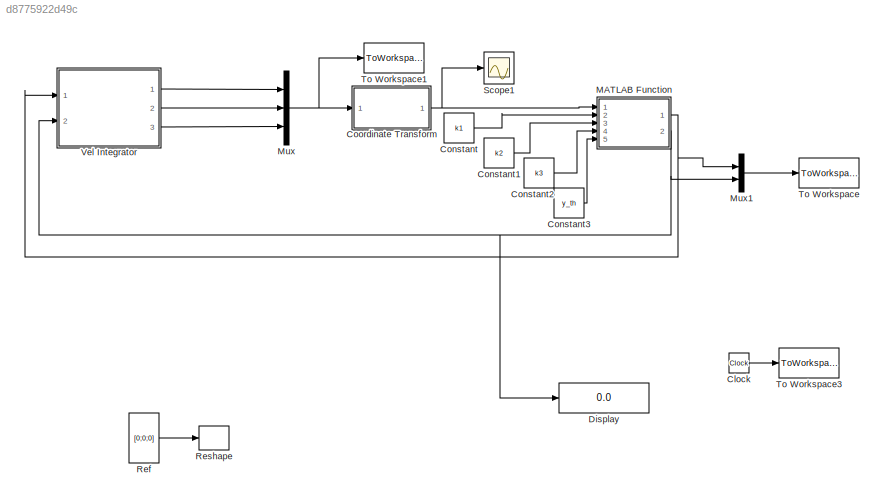
MODEL slx_d8775922d49c
KIND model
CONFIG AbsTol = auto
CONFIG EnableMultiTasking = off
CONFIG FixedStep = ST
CONFIG MaxStep = auto
CONFIG MinStep = auto
CONFIG RelTol = 1e-3
CONFIG SampleTimeConstraint = Unconstrained
CONFIG Solver = FixedStepAuto
CONFIG SolverName = FixedStepAuto
CONFIG StartTime = 0.0
CONFIG StopTime = 15
BLOCK [Clock] Clock
BLOCK [Constant] Constant
  Value = k1
BLOCK [Constant] Constant1
  Value = k2
BLOCK [Constant] Constant2
  Value = k3
BLOCK [Constant] Constant3
  Value = y_th
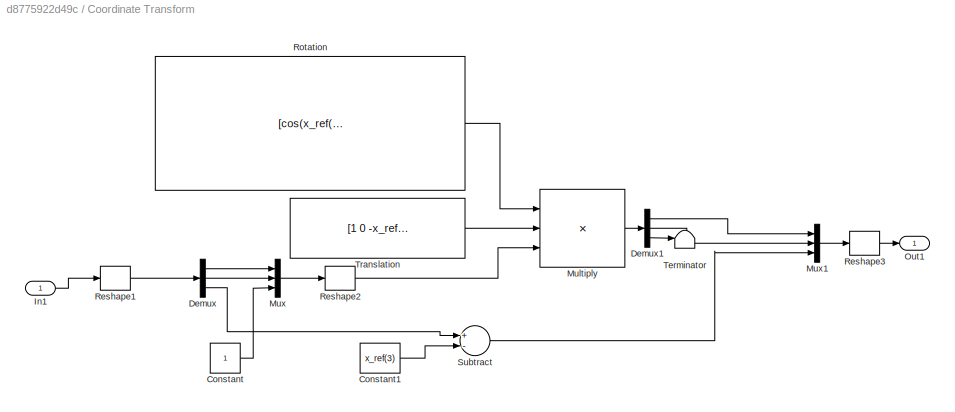
BLOCK [SubSystem] Coordinate Transform
  Ports = [1, 1]
  RequestExecContextInheritance = off
BLOCK [Constant] Coordinate Transform/Constant
BLOCK [Constant] Coordinate Transform/Constant1
  Value = x_ref(3)
BLOCK [Demux] Coordinate Transform/Demux
  DisplayOption = bar
  Outputs = 3
  Ports = [1, 3]
BLOCK [Demux] Coordinate Transform/Demux1
  DisplayOption = bar
  Outputs = 3
  Ports = [1, 3]
BLOCK [Inport] Coordinate Transform/In1
  IconDisplay = Port number
BLOCK [Product] Coordinate Transform/Multiply
  InputSameDT = off
  Inputs = 3
  Multiplication = Matrix(*)
  OutDataTypeStr = Inherit: Inherit via internal rule
  Ports = [3, 1]
  RndMeth = Floor
  SaturateOnIntegerOverflow = off
BLOCK [Mux] Coordinate Transform/Mux
  DisplayOption = bar
  Inputs = 3
  Ports = [3, 1]
BLOCK [Mux] Coordinate Transform/Mux1
  DisplayOption = bar
  Inputs = 3
  Ports = [3, 1]
BLOCK [Outport] Coordinate Transform/Out1
  IconDisplay = Port number
BLOCK [Reshape] Coordinate Transform/Reshape1
  OutputDimensionality = Column vector (2-D)
  Ports = [1, 1]
BLOCK [Reshape] Coordinate Transform/Reshape2
  OutputDimensionality = Column vector (2-D)
  Ports = [1, 1]
BLOCK [Reshape] Coordinate Transform/Reshape3
  OutputDimensionality = Column vector (2-D)
  Ports = [1, 1]
BLOCK [Constant] Coordinate Transform/Rotation
  Value = [cos(x_ref(3)) sin(x_ref(3)) 0;-sin(x_ref(3)) cos(x_ref(3)) 0; 0 0 1]
  VectorParams1D = off
BLOCK [Sum] Coordinate Transform/Subtract
  InputSameDT = off
  Inputs = +-
  OutDataTypeStr = Inherit: Inherit via internal rule
  Ports = [2, 1]
  SaturateOnIntegerOverflow = off
BLOCK [Terminator] Coordinate Transform/Terminator
BLOCK [Constant] Coordinate Transform/Translation
  Value = [1 0 -x_ref(1);0 1 -x_ref(2); 0 0 1]
  VectorParams1D = off
BLOCK [Display] Display
  Decimation = 1
  Ports = [1]
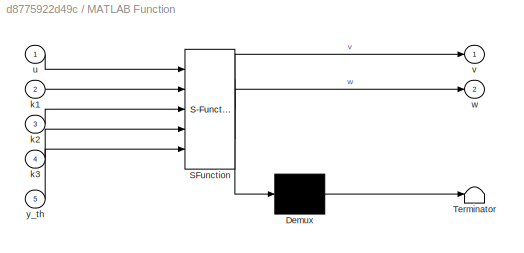
BLOCK [SubSystem] MATLAB Function
  ErrorFcn = Stateflow.Translate.translate
  PermitHierarchicalResolution = ExplicitOnly
  Ports = [5, 2]
  RequestExecContextInheritance = off
  SFBlockType = MATLAB Function
  TreatAsAtomicUnit = on
BLOCK [Demux] MATLAB Function/ Demux 
  Outputs = 1
  Ports = [1, 1]
BLOCK [S-Function] MATLAB Function/ SFunction 
  EnableBusSupport = on
  FunctionName = sf_sfun
  PortCounts = [5 3]
  Ports = [5, 3]
  SFcnIsStateOwnerBlock = off
  SFunctionDeploymentMode = off
  Tag = Stateflow S-Function vs_paper2002 2
BLOCK [Terminator] MATLAB Function/ Terminator 
BLOCK [Inport] MATLAB Function/k1
  IconDisplay = Port number
  Port = 2
BLOCK [Inport] MATLAB Function/k2
  IconDisplay = Port number
  Port = 3
BLOCK [Inport] MATLAB Function/k3
  IconDisplay = Port number
  Port = 4
BLOCK [Inport] MATLAB Function/u
  IconDisplay = Port number
BLOCK [Outport] MATLAB Function/v
  IconDisplay = Port number
BLOCK [Outport] MATLAB Function/w
  IconDisplay = Port number
  Port = 2
BLOCK [Inport] MATLAB Function/y_th
  IconDisplay = Port number
  Port = 5
BLOCK [Mux] Mux
  DisplayOption = bar
  Inputs = 3
  Ports = [3, 1]
BLOCK [Mux] Mux1
  DisplayOption = bar
  Inputs = 2
  Ports = [2, 1]
BLOCK [Constant] Ref
  Commented = on
  Value = [0;0;0]
  VectorParams1D = off
BLOCK [Reshape] Reshape
  Commented = on
  OutputDimensionality = Column vector (2-D)
  Ports = [1, 1]
BLOCK [Scope] Scope1
  Floating = off
  NumInputPorts = 1
  Ports = [1]
  ScopeSpecificationString = Simulink.scopes.TimeScopeBlockCfg('CurrentConfiguration', extmgr.ConfigurationSet(extmgr.Configuration('Core','General UI',true),extmgr.Configuration('Core','Source UI',true),extmgr.Configuration('Sources','WiredSimulink',true,'DataLoggingVariableName','ScopeData1'),extmgr.Configuration('Visuals','Time Domain',true,'SerializedDisplays',{struct('MinYLimReal','-5.16242','MaxYLimReal','1.68471','YLab...<+1463ch>
BLOCK [ToWorkspace] To Workspace
  FixptAsFi = on
  MaxDataPoints = inf
  Ports = [1]
  SampleTime = -1
  Save2DSignal = 3-D array (concatenate along third dimension)
  SaveFormat = Timeseries
  VariableName = vw
BLOCK [ToWorkspace] To Workspace1
  FixptAsFi = on
  MaxDataPoints = inf
  Ports = [1]
  SampleTime = -1
  Save2DSignal = 3-D array (concatenate along third dimension)
  SaveFormat = Timeseries
  VariableName = xc
BLOCK [ToWorkspace] To Workspace3
  FixptAsFi = on
  MaxDataPoints = inf
  Ports = [1]
  SampleTime = -1
  Save2DSignal = 3-D array (concatenate along third dimension)
  SaveFormat = Timeseries
  VariableName = time
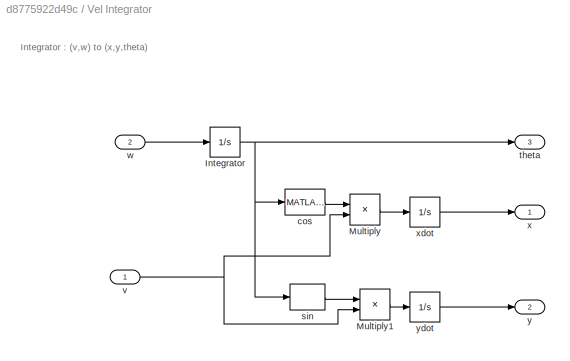
BLOCK [SubSystem] Vel Integrator
  Ports = [2, 3]
  RequestExecContextInheritance = off
BLOCK [Integrator] Vel Integrator/Integrator
  InitialCondition = theta_0
  Ports = [1, 1]
BLOCK [Product] Vel Integrator/Multiply
  InputSameDT = off
  OutDataTypeStr = Inherit: Inherit via internal rule
  Ports = [2, 1]
  RndMeth = Floor
  SaturateOnIntegerOverflow = off
BLOCK [Product] Vel Integrator/Multiply1
  InputSameDT = off
  OutDataTypeStr = Inherit: Inherit via internal rule
  Ports = [2, 1]
  RndMeth = Floor
  SaturateOnIntegerOverflow = off
BLOCK [MATLABFcn] Vel Integrator/cos
  MATLABFcn = cos(u)
  Ports = [1, 1]
BLOCK [MATLABFcn] Vel Integrator/sin
  MATLABFcn = sin(u)
  Ports = [1, 1]
BLOCK [Outport] Vel Integrator/theta
  IconDisplay = Port number
  Port = 3
BLOCK [Inport] Vel Integrator/v
  IconDisplay = Port number
BLOCK [Inport] Vel Integrator/w
  IconDisplay = Port number
  Port = 2
BLOCK [Outport] Vel Integrator/x
  IconDisplay = Port number
BLOCK [Integrator] Vel Integrator/xdot
  InitialCondition = x_0
  Ports = [1, 1]
BLOCK [Outport] Vel Integrator/y
  IconDisplay = Port number
  Port = 2
BLOCK [Integrator] Vel Integrator/ydot
  InitialCondition = y_0
  Ports = [1, 1]
ANNOTATION Vel Integrator: Integrator : (v,w) to (x,y,theta)
LINE Clock:1 -> To Workspace3:1
LINE Constant1:1 -> MATLAB Function:3
LINE Constant2:1 -> MATLAB Function:4
LINE Constant3:1 -> MATLAB Function:5
LINE Constant:1 -> MATLAB Function:2
LINE Coordinate Transform/Constant1:1 -> Coordinate Transform/Subtract:2
LINE Coordinate Transform/Constant:1 -> Coordinate Transform/Mux:3
LINE Coordinate Transform/Demux1:1 -> Coordinate Transform/Mux1:1
LINE Coordinate Transform/Demux1:2 -> Coordinate Transform/Mux1:2
LINE Coordinate Transform/Demux1:3 -> Coordinate Transform/Terminator:1
LINE Coordinate Transform/Demux:1 -> Coordinate Transform/Mux:1
LINE Coordinate Transform/Demux:2 -> Coordinate Transform/Mux:2
LINE Coordinate Transform/Demux:3 -> Coordinate Transform/Subtract:1
LINE Coordinate Transform/In1:1 -> Coordinate Transform/Reshape1:1
LINE Coordinate Transform/Multiply:1 -> Coordinate Transform/Demux1:1
LINE Coordinate Transform/Mux1:1 -> Coordinate Transform/Reshape3:1
LINE Coordinate Transform/Mux:1 -> Coordinate Transform/Reshape2:1
LINE Coordinate Transform/Reshape1:1 -> Coordinate Transform/Demux:1
LINE Coordinate Transform/Reshape2:1 -> Coordinate Transform/Multiply:3
LINE Coordinate Transform/Reshape3:1 -> Coordinate Transform/Out1:1
LINE Coordinate Transform/Rotation:1 -> Coordinate Transform/Multiply:1
LINE Coordinate Transform/Subtract:1 -> Coordinate Transform/Mux1:3
LINE Coordinate Transform/Translation:1 -> Coordinate Transform/Multiply:2
NET Coordinate Transform:1 -> MATLAB Function:1, Scope1:1
NET MATLAB Function:1 -> Mux1:1, Vel Integrator:1
NET MATLAB Function:2 -> Display:1, Mux1:2, Vel Integrator:2
LINE Mux1:1 -> To Workspace:1
NET Mux:1 -> Coordinate Transform:1, To Workspace1:1
LINE Ref:1 -> Reshape:1
NET Vel Integrator/Integrator:1 -> Vel Integrator/cos:1, Vel Integrator/sin:1, Vel Integrator/theta:1
LINE Vel Integrator/Multiply1:1 -> Vel Integrator/ydot:1
LINE Vel Integrator/Multiply:1 -> Vel Integrator/xdot:1
LINE Vel Integrator/cos:1 -> Vel Integrator/Multiply:1
LINE Vel Integrator/sin:1 -> Vel Integrator/Multiply1:1
NET Vel Integrator/v:1 -> Vel Integrator/Multiply1:2, Vel Integrator/Multiply:2
LINE Vel Integrator/w:1 -> Vel Integrator/Integrator:1
LINE Vel Integrator/xdot:1 -> Vel Integrator/x:1
LINE Vel Integrator/ydot:1 -> Vel Integrator/y:1
LINE Vel Integrator:1 -> Mux:1
LINE Vel Integrator:2 -> Mux:2
LINE Vel Integrator:3 -> Mux:3
note: NET lines group one-source signal fan-out (src -> all destinations, sorted); 1:1 wires keep LINE
CHART MATLAB Function states=1 transitions=1
  STATE_LABEL 'eML_blk_kernel()'
  STATE_LABEL 'SCRIPT:\nfunction [v,w] = fcn(u,k1,k2,k3,y_th)\nc = u(3); % theta\nx = u(1);\ny = u(2);\n\nif abs(y) > y_th\ndirect_judge = -cos(c)*x - sin(c)*y;\n\n% need histerisis !!\nif direct_judge == 0\n    v = k3;\nelse\n    v = sign(direct_judge)*k3;\nend\nw = -k2*c-k1*v*(sin(c)+0.0001)/(c+0.0001)*y;\nelse\n    v = -x*k3;\n    w = -k2*c-k1*v*(sin(c)+0.0001)/(c+0.0001)*y;\nend'
